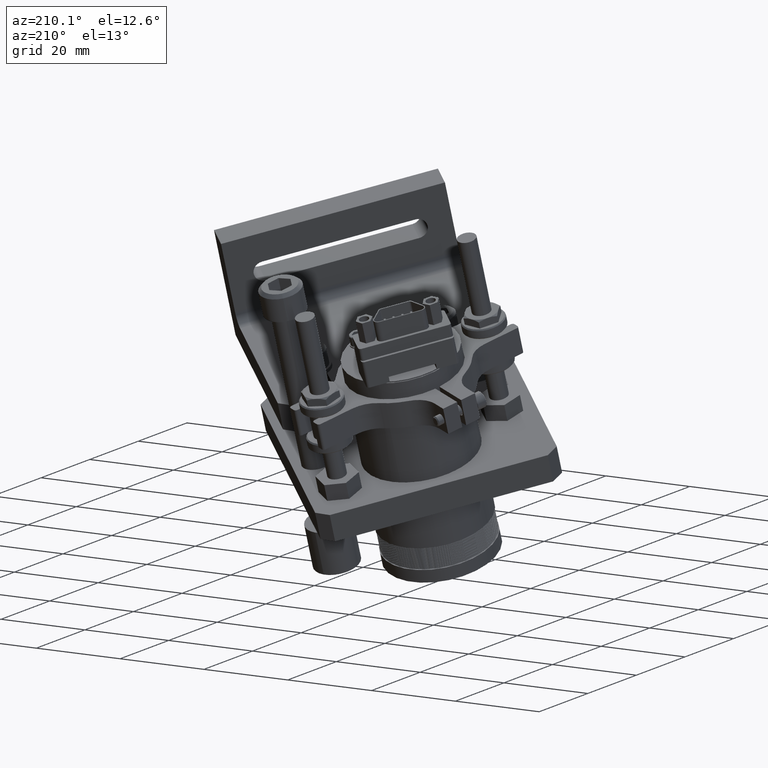
[diagram: clean part render]
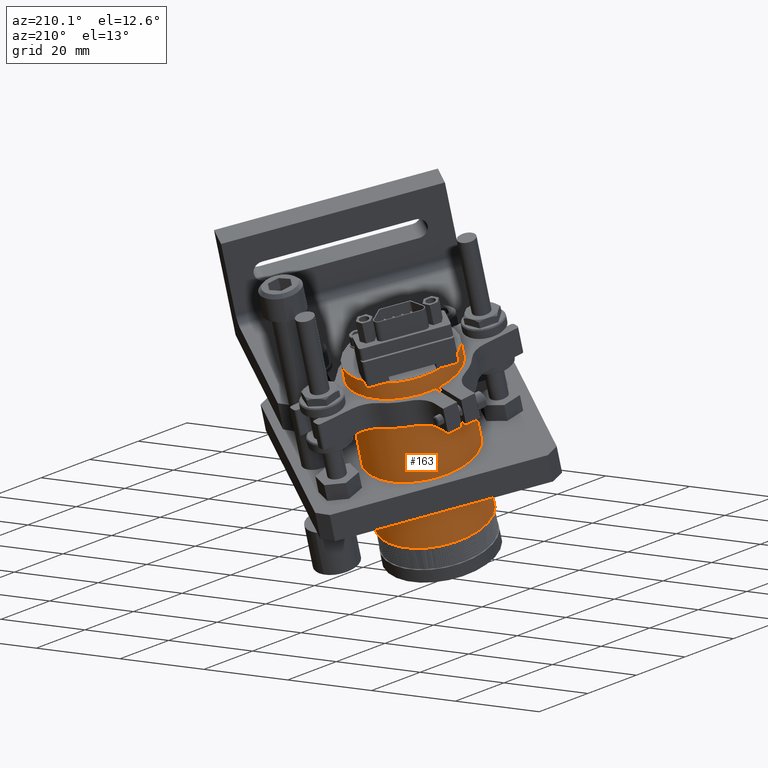
[diagram: same view with one face highlighted and labeled with its STEP entity id]
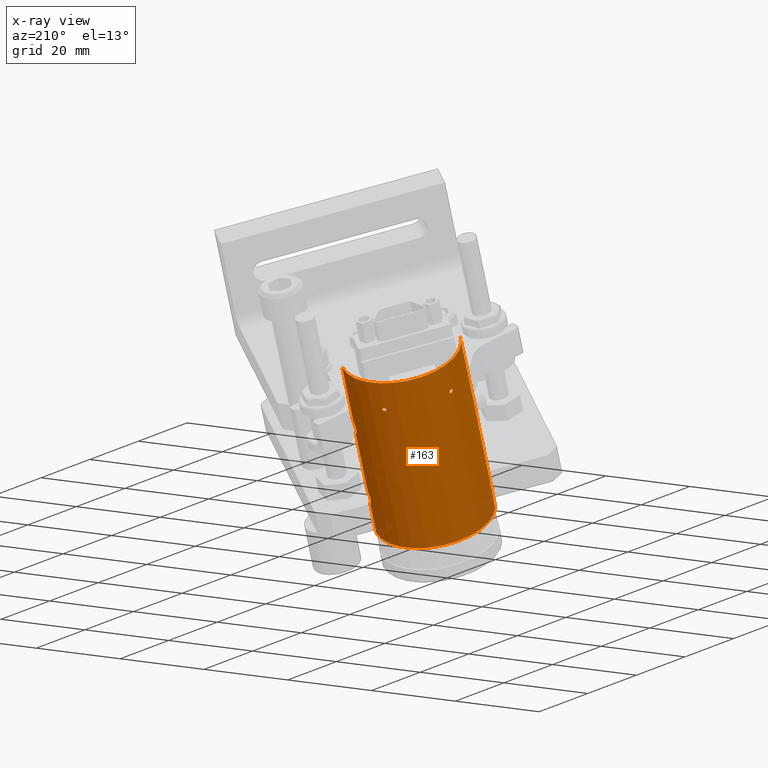
[diagram: x-ray of the same camera — body ghosted, the highlighted face saturated]
A machine part, auxiliary view. The second image highlights one B-rep face of the part: STEP entity #163.
The next image is the same camera in x-ray: the body ghosted, the highlighted face saturated — about 0% of this face is hidden behind the body in this view.
In plain terms, the highlighted cylindrical surface (partial cylindrical patch) has radius 12.6492 mm, axis along (-0.0041, -0.3425, -0.9395).
Its self-contained STEP definition (entity closure, byte-faithful):
#163 = ADVANCED_FACE ( 'NONE', ( #18725, #18726, #18727 ), #18728, .T. ) ;
#495 = EDGE_CURVE ( 'NONE', #3360, #3358, #24590, .T. ) ;
#496 = EDGE_CURVE ( 'NONE', #3358, #3360, #24589, .T. ) ;
#497 = EDGE_CURVE ( 'NONE', #3362, #3365, #24588, .T. ) ;
#498 = EDGE_CURVE ( 'NONE', #3365, #3362, #24587, .T. ) ;
#499 = EDGE_CURVE ( 'NONE', #3368, #3370, #20648, .T. ) ;
#500 = EDGE_CURVE ( 'NONE', #3368, #3364, #20647, .T. ) ;
#501 = EDGE_CURVE ( 'NONE', #3364, #3359, #24586, .T. ) ;
#502 = EDGE_CURVE ( 'NONE', #3359, #3363, #20650, .T. ) ;
#503 = EDGE_CURVE ( 'NONE', #3363, #3367, #24585, .T. ) ;
#504 = EDGE_CURVE ( 'NONE', #3367, #3357, #20652, .T. ) ;
#505 = EDGE_CURVE ( 'NONE', #3357, #3380, #20655, .T. ) ;
#506 = EDGE_CURVE ( 'NONE', #3369, #3380, #20654, .T. ) ;
#507 = EDGE_CURVE ( 'NONE', #3369, #3366, #24584, .T. ) ;
#508 = EDGE_CURVE ( 'NONE', #3382, #3366, #20657, .T. ) ;
#509 = EDGE_CURVE ( 'NONE', #3382, #3381, #24583, .T. ) ;
#510 = EDGE_CURVE ( 'NONE', #3370, #3381, #20659, .T. ) ;
#857 = ORIENTED_EDGE ( 'NONE', *, *, #495, .F. ) ;
#858 = ORIENTED_EDGE ( 'NONE', *, *, #496, .F. ) ;
#859 = ORIENTED_EDGE ( 'NONE', *, *, #497, .F. ) ;
#860 = ORIENTED_EDGE ( 'NONE', *, *, #498, .F. ) ;
#861 = ORIENTED_EDGE ( 'NONE', *, *, #499, .F. ) ;
#862 = ORIENTED_EDGE ( 'NONE', *, *, #500, .T. ) ;
#863 = ORIENTED_EDGE ( 'NONE', *, *, #501, .T. ) ;
#864 = ORIENTED_EDGE ( 'NONE', *, *, #502, .T. ) ;
#865 = ORIENTED_EDGE ( 'NONE', *, *, #503, .T. ) ;
#866 = ORIENTED_EDGE ( 'NONE', *, *, #504, .T. ) ;
#867 = ORIENTED_EDGE ( 'NONE', *, *, #505, .T. ) ;
#868 = ORIENTED_EDGE ( 'NONE', *, *, #506, .F. ) ;
#869 = ORIENTED_EDGE ( 'NONE', *, *, #507, .T. ) ;
#870 = ORIENTED_EDGE ( 'NONE', *, *, #508, .F. ) ;
#871 = ORIENTED_EDGE ( 'NONE', *, *, #509, .T. ) ;
#872 = ORIENTED_EDGE ( 'NONE', *, *, #510, .F. ) ;
#3357 = VERTEX_POINT ( 'NONE', #10486 ) ;
#3358 = VERTEX_POINT ( 'NONE', #10487 ) ;
#3359 = VERTEX_POINT ( 'NONE', #10488 ) ;
#3360 = VERTEX_POINT ( 'NONE', #10489 ) ;
#3362 = VERTEX_POINT ( 'NONE', #10491 ) ;
#3363 = VERTEX_POINT ( 'NONE', #10492 ) ;
#3364 = VERTEX_POINT ( 'NONE', #10493 ) ;
#3365 = VERTEX_POINT ( 'NONE', #10494 ) ;
#3366 = VERTEX_POINT ( 'NONE', #10495 ) ;
#3367 = VERTEX_POINT ( 'NONE', #10496 ) ;
#3368 = VERTEX_POINT ( 'NONE', #10497 ) ;
#3369 = VERTEX_POINT ( 'NONE', #10498 ) ;
#3370 = VERTEX_POINT ( 'NONE', #10499 ) ;
#3380 = VERTEX_POINT ( 'NONE', #10509 ) ;
#3381 = VERTEX_POINT ( 'NONE', #10510 ) ;
#3382 = VERTEX_POINT ( 'NONE', #10511 ) ;
#10486 = CARTESIAN_POINT ( 'NONE',  ( -0.4695154141997984800, -0.09096465124174728200, 0.6854652816767824500 ) ) ;
#10487 = CARTESIAN_POINT ( 'NONE',  ( 0.3109845858002016100, 0.3191545387506253800, -0.6225347183232175000 ) ) ;
#10488 = CARTESIAN_POINT ( 'NONE',  ( -0.4695154141997984800, -0.09096465124174793500, -0.2676180516565510000 ) ) ;
#10489 = CARTESIAN_POINT ( 'NONE',  ( 0.3109845858002016100, 0.3191545387506253800, -0.6525347183232175200 ) ) ;
#10491 = CARTESIAN_POINT ( 'NONE',  ( -0.2540154141997985100, 0.3191545387506253800, -0.6525347183232175200 ) ) ;
#10492 = CARTESIAN_POINT ( 'NONE',  ( -0.4695154141997984800, -0.09096465124174794900, 0.2925486150101159800 ) ) ;
#10493 = CARTESIAN_POINT ( 'NONE',  ( -0.4695154141997984800, -0.09096465124174790700, -0.3741180516565506500 ) ) ;
#10494 = CARTESIAN_POINT ( 'NONE',  ( -0.2540154141997985600, 0.3191545387506254900, -0.6225347183232175000 ) ) ;
#10495 = CARTESIAN_POINT ( 'NONE',  ( 0.5264845858002015200, -0.09096465124174733800, 0.2925486150101159800 ) ) ;
#10496 = CARTESIAN_POINT ( 'NONE',  ( -0.4695154141997984800, -0.09096465124174793500, 0.3990486150101155700 ) ) ;
#10497 = CARTESIAN_POINT ( 'NONE',  ( -0.4695154141997984800, -0.09096465124174728200, -0.8875347183232176200 ) ) ;
#10498 = CARTESIAN_POINT ( 'NONE',  ( 0.5264845858002015200, -0.09096465124174735200, 0.3990486150101155700 ) ) ;
#10499 = CARTESIAN_POINT ( 'NONE',  ( 0.5264845858002015200, -0.09096465124174735200, -0.8875347183232176200 ) ) ;
#10509 = CARTESIAN_POINT ( 'NONE',  ( 0.5264845858002015200, -0.09096465124174735200, 0.6854652816767824500 ) ) ;
#10510 = CARTESIAN_POINT ( 'NONE',  ( 0.5264845858002015200, -0.09096465124174735200, -0.3741180516565506500 ) ) ;
#10511 = CARTESIAN_POINT ( 'NONE',  ( 0.5264845858002015200, -0.09096465124174793500, -0.2676180516565510000 ) ) ;
#13537 = EDGE_LOOP ( 'NONE', ( #861, #862, #863, #864, #865, #866, #867, #868, #869, #870, #871, #872 ) ) ;
#13541 = EDGE_LOOP ( 'NONE', ( #859, #860 ) ) ;
#13545 = EDGE_LOOP ( 'NONE', ( #857, #858 ) ) ;
#17322 = AXIS2_PLACEMENT_3D ( 'NONE', #19163, #19164, #19165 ) ;
#17538 = AXIS2_PLACEMENT_3D ( 'NONE', #21743, #21744, #21745 ) ;
#17539 = AXIS2_PLACEMENT_3D ( 'NONE', #21800, #21801, #21802 ) ;
#18725 = FACE_BOUND ( 'NONE', #13545, .T. ) ;
#18726 = FACE_BOUND ( 'NONE', #13541, .T. ) ;
#18727 = FACE_OUTER_BOUND ( 'NONE', #13537, .T. ) ;
#18728 = CYLINDRICAL_SURFACE ( 'NONE', #17322, 0.4980000000000000000 ) ;
#19163 = CARTESIAN_POINT ( 'NONE',  ( 0.02848458580020153700, -0.09096465124174735200, -0.8875347183232176200 ) ) ;
#19164 = DIRECTION ( 'NONE',  ( -0.0000000000000000000, -0.0000000000000000000, 1.000000000000000000 ) ) ;
#19165 = DIRECTION ( 'NONE',  ( 1.000000000000000000, 0.0000000000000000000, 0.0000000000000000000 ) ) ;
#20647 = LINE ( 'NONE', #21746, #20649 ) ;
#20648 = CIRCLE ( 'NONE', #17538, 0.4980000000000000000 ) ;
#20649 = VECTOR ( 'NONE', #21747, 39.37007874015748100 ) ;
#20650 = LINE ( 'NONE', #21772, #20651 ) ;
#20651 = VECTOR ( 'NONE', #21773, 39.37007874015748100 ) ;
#20652 = LINE ( 'NONE', #21798, #20653 ) ;
#20653 = VECTOR ( 'NONE', #21799, 39.37007874015748100 ) ;
#20654 = LINE ( 'NONE', #21803, #20656 ) ;
#20655 = CIRCLE ( 'NONE', #17539, 0.4980000000000000000 ) ;
#20656 = VECTOR ( 'NONE', #21804, 39.37007874015748100 ) ;
#20657 = LINE ( 'NONE', #21827, #20658 ) ;
#20658 = VECTOR ( 'NONE', #21828, 39.37007874015748100 ) ;
#20659 = LINE ( 'NONE', #21851, #20660 ) ;
#20660 = VECTOR ( 'NONE', #21852, 39.37007874015748100 ) ;
#21687 = CARTESIAN_POINT ( 'NONE',  ( 0.3109845858002016100, 0.3191545387506253800, -0.6525347183232175200 ) ) ;
#21688 = CARTESIAN_POINT ( 'NONE',  ( 0.3073956471025011700, 0.3216266863770733100, -0.6525347183232175200 ) ) ;
#21689 = CARTESIAN_POINT ( 'NONE',  ( 0.3038153316814026800, 0.3240160161316003600, -0.6512775745080050500 ) ) ;
#21690 = CARTESIAN_POINT ( 'NONE',  ( 0.2994703837680011100, 0.3268555143558898900, -0.6473448776871464400 ) ) ;
#21691 = CARTESIAN_POINT ( 'NONE',  ( 0.2982267117378210600, 0.3276572139664892200, -0.6456978679331472100 ) ) ;
#21692 = CARTESIAN_POINT ( 'NONE',  ( 0.2964767684679801000, 0.3287796406369268300, -0.6418848445743224900 ) ) ;
#21693 = CARTESIAN_POINT ( 'NONE',  ( 0.2959906336171290200, 0.3290883387866524500, -0.6397334479995779900 ) ) ;
#21694 = CARTESIAN_POINT ( 'NONE',  ( 0.2959786536501391500, 0.3290959678545019000, -0.6354192953003454700 ) ) ;
#21695 = CARTESIAN_POINT ( 'NONE',  ( 0.2964533800197161100, 0.3287945636400444500, -0.6332572777533201900 ) ) ;
#21696 = CARTESIAN_POINT ( 'NONE',  ( 0.2981974056136417200, 0.3276760873180844000, -0.6294143450472975400 ) ) ;
#21697 = CARTESIAN_POINT ( 'NONE',  ( 0.2994416829132567300, 0.3268740925022053400, -0.6277590974932774100 ) ) ;
#21698 = CARTESIAN_POINT ( 'NONE',  ( 0.3037656069615792300, 0.3240488622565236800, -0.6238200610836133200 ) ) ;
#21699 = CARTESIAN_POINT ( 'NONE',  ( 0.3074314844803083300, 0.3216020007259807200, -0.6225347183232175000 ) ) ;
#21700 = CARTESIAN_POINT ( 'NONE',  ( 0.3109845858002016100, 0.3191545387506253800, -0.6225347183232175000 ) ) ;
#21701 = CARTESIAN_POINT ( 'NONE',  ( 0.3109845858002016100, 0.3191545387506253800, -0.6225347183232175000 ) ) ;
#21702 = CARTESIAN_POINT ( 'NONE',  ( 0.3145752503260515500, 0.3166812023320797500, -0.6225347183232175000 ) ) ;
#21703 = CARTESIAN_POINT ( 'NONE',  ( 0.3181885189463549100, 0.3141131527706019200, -0.6238291775378074200 ) ) ;
#21704 = CARTESIAN_POINT ( 'NONE',  ( 0.3224623876638053100, 0.3110106602605873800, -0.6276886688804941300 ) ) ;
#21705 = CARTESIAN_POINT ( 'NONE',  ( 0.3237086311824586300, 0.3100939019622313600, -0.6293205480253940600 ) ) ;
#21706 = CARTESIAN_POINT ( 'NONE',  ( 0.3254702251068297100, 0.3087911868839352500, -0.6331142909174505300 ) ) ;
#21707 = CARTESIAN_POINT ( 'NONE',  ( 0.3259775563738890900, 0.3084122791566586400, -0.6352822710098308100 ) ) ;
#21708 = CARTESIAN_POINT ( 'NONE',  ( 0.3259914660198181000, 0.3084019175859409900, -0.6396925486217175400 ) ) ;
#21709 = CARTESIAN_POINT ( 'NONE',  ( 0.3254975130664933800, 0.3087708855417724600, -0.6418677651583355500 ) ) ;
#21710 = CARTESIAN_POINT ( 'NONE',  ( 0.3237520615302508200, 0.3100619016283899800, -0.6456828418001048200 ) ) ;
#21711 = CARTESIAN_POINT ( 'NONE',  ( 0.3225099144198944600, 0.3109759499600088800, -0.6473287859925035400 ) ) ;
#21712 = CARTESIAN_POINT ( 'NONE',  ( 0.3182076701790128000, 0.3140996614734290500, -0.6512407351503767300 ) ) ;
#21713 = CARTESIAN_POINT ( 'NONE',  ( 0.3146114665747891700, 0.3166562557055427300, -0.6525347183232175200 ) ) ;
#21714 = CARTESIAN_POINT ( 'NONE',  ( 0.3109845858002016100, 0.3191545387506253800, -0.6525347183232175200 ) ) ;
#21715 = CARTESIAN_POINT ( 'NONE',  ( -0.2540154141997985100, 0.3191545387506253800, -0.6525347183232175200 ) ) ;
#21716 = CARTESIAN_POINT ( 'NONE',  ( -0.2576491294029191200, 0.3166515479861584100, -0.6525347183232175200 ) ) ;
#21717 = CARTESIAN_POINT ( 'NONE',  ( -0.2612010279169965600, 0.3141262454629158400, -0.6512479655826178800 ) ) ;
#21718 = CARTESIAN_POINT ( 'NONE',  ( -0.2654738711574983800, 0.3110248050005519600, -0.6474026113542713500 ) ) ;
#21719 = CARTESIAN_POINT ( 'NONE',  ( -0.2667223476083728200, 0.3101065306867262200, -0.6457798170765469700 ) ) ;
#21720 = CARTESIAN_POINT ( 'NONE',  ( -0.2685032632194224200, 0.3087895783052260800, -0.6419562611406830500 ) ) ;
#21721 = CARTESIAN_POINT ( 'NONE',  ( -0.2690062925411896300, 0.3084138377001159900, -0.6397885477157614400 ) ) ;
#21722 = CARTESIAN_POINT ( 'NONE',  ( -0.2690242833168776700, 0.3084004360186378700, -0.6354039841296880200 ) ) ;
#21723 = CARTESIAN_POINT ( 'NONE',  ( -0.2685353806314875700, 0.3087656688914070500, -0.6332194953283854000 ) ) ;
#21724 = CARTESIAN_POINT ( 'NONE',  ( -0.2667818386782790400, 0.3100626893081576100, -0.6293818672447445400 ) ) ;
#21725 = CARTESIAN_POINT ( 'NONE',  ( -0.2655374183755049900, 0.3109783655839655800, -0.6277375470331236800 ) ) ;
#21726 = CARTESIAN_POINT ( 'NONE',  ( -0.2612441187100514900, 0.3140955771695685400, -0.6238339733378870400 ) ) ;
#21727 = CARTESIAN_POINT ( 'NONE',  ( -0.2576110736718829100, 0.3166777616925153200, -0.6225347183232175000 ) ) ;
#21728 = CARTESIAN_POINT ( 'NONE',  ( -0.2540154141997985600, 0.3191545387506254900, -0.6225347183232175000 ) ) ;
#21729 = CARTESIAN_POINT ( 'NONE',  ( -0.2540154141997985600, 0.3191545387506254900, -0.6225347183232175000 ) ) ;
#21730 = CARTESIAN_POINT ( 'NONE',  ( -0.2504738636724954700, 0.3215940442611619500, -0.6225347183232178300 ) ) ;
#21731 = CARTESIAN_POINT ( 'NONE',  ( -0.2468296755508094800, 0.3240267960926598300, -0.6238064463117841700 ) ) ;
#21732 = CARTESIAN_POINT ( 'NONE',  ( -0.2425083839944094400, 0.3268508239238895300, -0.6277182358095977400 ) ) ;
#21733 = CARTESIAN_POINT ( 'NONE',  ( -0.2412582441491384600, 0.3276567382074024300, -0.6293766093141789400 ) ) ;
#21734 = CARTESIAN_POINT ( 'NONE',  ( -0.2395233862184615300, 0.3287695372011988900, -0.6331436757029549300 ) ) ;
#21735 = CARTESIAN_POINT ( 'NONE',  ( -0.2390248002911029600, 0.3290862129084213800, -0.6353029856639030900 ) ) ;
#21736 = CARTESIAN_POINT ( 'NONE',  ( -0.2390063012047747600, 0.3290979934787050500, -0.6396384443331439900 ) ) ;
#21737 = CARTESIAN_POINT ( 'NONE',  ( -0.2394874679001335900, 0.3287924632679524200, -0.6418165285813519600 ) ) ;
#21738 = CARTESIAN_POINT ( 'NONE',  ( -0.2412181187607190200, 0.3276825843855875600, -0.6456356042141266900 ) ) ;
#21739 = CARTESIAN_POINT ( 'NONE',  ( -0.2424601284815422200, 0.3268821278276254900, -0.6472963762734594800 ) ) ;
#21740 = CARTESIAN_POINT ( 'NONE',  ( -0.2467875743597725300, 0.3240547624539516500, -0.6512466367564313500 ) ) ;
#21741 = CARTESIAN_POINT ( 'NONE',  ( -0.2504363806195632500, 0.3216198634930138000, -0.6525347183232175200 ) ) ;
#21742 = CARTESIAN_POINT ( 'NONE',  ( -0.2540154141997985100, 0.3191545387506253800, -0.6525347183232175200 ) ) ;
#21743 = CARTESIAN_POINT ( 'NONE',  ( 0.02848458580020153700, -0.09096465124174735200, -0.8875347183232176200 ) ) ;
#21744 = DIRECTION ( 'NONE',  ( 0.0000000000000000000, 0.0000000000000000000, -1.000000000000000000 ) ) ;
#21745 = DIRECTION ( 'NONE',  ( -1.000000000000000000, 0.0000000000000000000, 0.0000000000000000000 ) ) ;
#21746 = CARTESIAN_POINT ( 'NONE',  ( -0.4695154141997984800, -0.09096465124174728200, -0.8875347183232176200 ) ) ;
#21747 = DIRECTION ( 'NONE',  ( -0.0000000000000000000, -0.0000000000000000000, 1.000000000000000000 ) ) ;
#21748 = CARTESIAN_POINT ( 'NONE',  ( -0.4695154141997984800, -0.09096465124174790700, -0.3741180516565506500 ) ) ;
#21749 = CARTESIAN_POINT ( 'NONE',  ( -0.4695154141997984800, -0.08392253230050501800, -0.3741180516565506500 ) ) ;
#21750 = CARTESIAN_POINT ( 'NONE',  ( -0.4693617647119127100, -0.07701264858650618000, -0.3727297238100195100 ) ) ;
#21751 = CARTESIAN_POINT ( 'NONE',  ( -0.4689652262293815300, -0.06734058965587015600, -0.3687183227461495200 ) ) ;
#21752 = CARTESIAN_POINT ( 'NONE',  ( -0.4688085671496736200, -0.06428278789349727000, -0.3670821998264403600 ) ) ;
#21753 = CARTESIAN_POINT ( 'NONE',  ( -0.4684642833876995800, -0.05849584751526577100, -0.3632171497269277000 ) ) ;
#21754 = CARTESIAN_POINT ( 'NONE',  ( -0.4682754604026218000, -0.05575792177752066100, -0.3609691584054858200 ) ) ;
#21755 = CARTESIAN_POINT ( 'NONE',  ( -0.4677170910540239300, -0.04839558854301778700, -0.3536039287515475000 ) ) ;
#21756 = CARTESIAN_POINT ( 'NONE',  ( -0.4673435866255102900, -0.04442921320185484700, -0.3476658943883733100 ) ) ;
#21757 = CARTESIAN_POINT ( 'NONE',  ( -0.4668163101506916400, -0.03911731731965865200, -0.3348510890167091800 ) ) ;
#21758 = CARTESIAN_POINT ( 'NONE',  ( -0.4666605520815418400, -0.03771718709033176900, -0.3278392820761262300 ) ) ;
#21759 = CARTESIAN_POINT ( 'NONE',  ( -0.4666601435774472800, -0.03771338861674817400, -0.3174115321827044600 ) ) ;
#21760 = CARTESIAN_POINT ( 'NONE',  ( -0.4666978042056524300, -0.03806031495094455700, -0.3138805829209845900 ) ) ;
#21761 = CARTESIAN_POINT ( 'NONE',  ( -0.4668413107484719600, -0.03942122897922398900, -0.3070488932462828200 ) ) ;
#21762 = CARTESIAN_POINT ( 'NONE',  ( -0.4669463671531475800, -0.04042782880299444100, -0.3037281653954694800 ) ) ;
#21763 = CARTESIAN_POINT ( 'NONE',  ( -0.4673439776030932600, -0.04443257650503011600, -0.2940527013196255200 ) ) ;
#21764 = CARTESIAN_POINT ( 'NONE',  ( -0.4677125317979888300, -0.04833520074213175400, -0.2881920446410989300 ) ) ;
#21765 = CARTESIAN_POINT ( 'NONE',  ( -0.4684664537565173000, -0.05827652119201658100, -0.2782478963515200900 ) ) ;
#21766 = CARTESIAN_POINT ( 'NONE',  ( -0.4688340067617317600, -0.06413407343895177700, -0.2743447862610635700 ) ) ;
#21767 = CARTESIAN_POINT ( 'NONE',  ( -0.4692302546162633900, -0.07380792566643876200, -0.2703369505938763000 ) ) ;
#21768 = CARTESIAN_POINT ( 'NONE',  ( -0.4693348621068544300, -0.07712771961114584000, -0.2693294785393198800 ) ) ;
#21769 = CARTESIAN_POINT ( 'NONE',  ( -0.4694778124993985200, -0.08395656511596461000, -0.2679665211988814200 ) ) ;
#21770 = CARTESIAN_POINT ( 'NONE',  ( -0.4695154141997983100, -0.08748804839738269500, -0.2676180516565509500 ) ) ;
#21771 = CARTESIAN_POINT ( 'NONE',  ( -0.4695154141997984800, -0.09096465124174793500, -0.2676180516565510000 ) ) ;
#21772 = CARTESIAN_POINT ( 'NONE',  ( -0.4695154141997984800, -0.09096465124174728200, -0.8875347183232176200 ) ) ;
#21773 = DIRECTION ( 'NONE',  ( -0.0000000000000000000, -0.0000000000000000000, 1.000000000000000000 ) ) ;
#21774 = CARTESIAN_POINT ( 'NONE',  ( -0.4695154141997984800, -0.09096465124174794900, 0.2925486150101159800 ) ) ;
#21775 = CARTESIAN_POINT ( 'NONE',  ( -0.4695154141997985300, -0.08392253230050503200, 0.2925486150101159800 ) ) ;
#21776 = CARTESIAN_POINT ( 'NONE',  ( -0.4693617647119127100, -0.07701264858650616600, 0.2939369428566471200 ) ) ;
#21777 = CARTESIAN_POINT ( 'NONE',  ( -0.4689652262293813000, -0.06734058965587010100, 0.2979483439205170000 ) ) ;
#21778 = CARTESIAN_POINT ( 'NONE',  ( -0.4688085671496735600, -0.06428278789349725600, 0.2995844668402263300 ) ) ;
#21779 = CARTESIAN_POINT ( 'NONE',  ( -0.4684642833876995800, -0.05849584751526577800, 0.3034495169397388700 ) ) ;
#21780 = CARTESIAN_POINT ( 'NONE',  ( -0.4682754604026218000, -0.05575792177752066100, 0.3056975082611808100 ) ) ;
#21781 = CARTESIAN_POINT ( 'NONE',  ( -0.4677170910540238700, -0.04839558854301778700, 0.3130627379151192400 ) ) ;
#21782 = CARTESIAN_POINT ( 'NONE',  ( -0.4673435866255102900, -0.04442921320185484700, 0.3190007722782933800 ) ) ;
#21783 = CARTESIAN_POINT ( 'NONE',  ( -0.4668163101506914700, -0.03911731731965865200, 0.3318155776499575000 ) ) ;
#21784 = CARTESIAN_POINT ( 'NONE',  ( -0.4666605520815417800, -0.03771718709033176200, 0.3388273845905404600 ) ) ;
#21785 = CARTESIAN_POINT ( 'NONE',  ( -0.4666601435774471200, -0.03771338861674816700, 0.3492551344839621200 ) ) ;
#21786 = CARTESIAN_POINT ( 'NONE',  ( -0.4666978042056523200, -0.03806031495094455000, 0.3527860837456818200 ) ) ;
#21787 = CARTESIAN_POINT ( 'NONE',  ( -0.4668413107484720700, -0.03942122897922401000, 0.3596177734203840300 ) ) ;
#21788 = CARTESIAN_POINT ( 'NONE',  ( -0.4669463671531476900, -0.04042782880299445500, 0.3629385012711972000 ) ) ;
#21789 = CARTESIAN_POINT ( 'NONE',  ( -0.4673439776030933200, -0.04443257650503011600, 0.3726139653470413300 ) ) ;
#21790 = CARTESIAN_POINT ( 'NONE',  ( -0.4677125317979888800, -0.04833520074213177400, 0.3784746220255677500 ) ) ;
#21791 = CARTESIAN_POINT ( 'NONE',  ( -0.4684664537565174100, -0.05827652119201654600, 0.3884187703151464300 ) ) ;
#21792 = CARTESIAN_POINT ( 'NONE',  ( -0.4688340067617319300, -0.06413407343895172200, 0.3923218804056030600 ) ) ;
#21793 = CARTESIAN_POINT ( 'NONE',  ( -0.4692302546162633900, -0.07380792566643873400, 0.3963297160727902700 ) ) ;
#21794 = CARTESIAN_POINT ( 'NONE',  ( -0.4693348621068544300, -0.07712771961114584000, 0.3973371881273468100 ) ) ;
#21795 = CARTESIAN_POINT ( 'NONE',  ( -0.4694778124993984600, -0.08395656511596461000, 0.3987001454677850900 ) ) ;
#21796 = CARTESIAN_POINT ( 'NONE',  ( -0.4695154141997982500, -0.08748804839738268100, 0.3990486150101155100 ) ) ;
#21797 = CARTESIAN_POINT ( 'NONE',  ( -0.4695154141997984800, -0.09096465124174793500, 0.3990486150101155700 ) ) ;
#21798 = CARTESIAN_POINT ( 'NONE',  ( -0.4695154141997984800, -0.09096465124174728200, -0.8875347183232176200 ) ) ;
#21799 = DIRECTION ( 'NONE',  ( -0.0000000000000000000, -0.0000000000000000000, 1.000000000000000000 ) ) ;
#21800 = CARTESIAN_POINT ( 'NONE',  ( 0.02848458580020153700, -0.09096465124174735200, 0.6854652816767824500 ) ) ;
#21801 = DIRECTION ( 'NONE',  ( 0.0000000000000000000, 0.0000000000000000000, -1.000000000000000000 ) ) ;
#21802 = DIRECTION ( 'NONE',  ( -1.000000000000000000, 0.0000000000000000000, 0.0000000000000000000 ) ) ;
#21803 = CARTESIAN_POINT ( 'NONE',  ( 0.5264845858002015200, -0.09096465124174735200, -0.8875347183232176200 ) ) ;
#21804 = DIRECTION ( 'NONE',  ( -0.0000000000000000000, -0.0000000000000000000, 1.000000000000000000 ) ) ;
#21805 = CARTESIAN_POINT ( 'NONE',  ( 0.5264845858002015200, -0.09096465124174735200, 0.3990486150101155700 ) ) ;
#21806 = CARTESIAN_POINT ( 'NONE',  ( 0.5264845858002016300, -0.08401308505449139900, 0.3990486150101155100 ) ) ;
#21807 = CARTESIAN_POINT ( 'NONE',  ( 0.5263301722921424100, -0.07700361767814357900, 0.3976518827287614500 ) ) ;
#21808 = CARTESIAN_POINT ( 'NONE',  ( 0.5258054772827669400, -0.06418650077061431600, 0.3923453924346695900 ) ) ;
#21809 = CARTESIAN_POINT ( 'NONE',  ( 0.5254332074684500100, -0.05824872349399243300, 0.3883828469410942100 ) ) ;
#21810 = CARTESIAN_POINT ( 'NONE',  ( 0.5248749225747215700, -0.05088099268279456400, 0.3810251586372751000 ) ) ;
#21811 = CARTESIAN_POINT ( 'NONE',  ( 0.5246858723721665700, -0.04863203327256562800, 0.3782887518517242800 ) ) ;
#21812 = CARTESIAN_POINT ( 'NONE',  ( 0.5243408181586718400, -0.04476547190855160300, 0.3725062050371165100 ) ) ;
#21813 = CARTESIAN_POINT ( 'NONE',  ( 0.5241835783201715900, -0.04312828289315737800, 0.3694505960749469000 ) ) ;
#21814 = CARTESIAN_POINT ( 'NONE',  ( 0.5237851103802345600, -0.03911267308155091200, 0.3597851171163297700 ) ) ;
#21815 = CARTESIAN_POINT ( 'NONE',  ( 0.5236300228722566800, -0.03771996911134251100, 0.3528761703604295600 ) ) ;
#21816 = CARTESIAN_POINT ( 'NONE',  ( 0.5236288823111091600, -0.03770936360603148500, 0.3388013081180481500 ) ) ;
#21817 = CARTESIAN_POINT ( 'NONE',  ( 0.5237828559997942400, -0.03909155985363516700, 0.3318890642130515300 ) ) ;
#21818 = CARTESIAN_POINT ( 'NONE',  ( 0.5241803678515039000, -0.04309513928721896100, 0.3222135561037000600 ) ) ;
#21819 = CARTESIAN_POINT ( 'NONE',  ( 0.5243373612955234400, -0.04472854830615675300, 0.3191549776729764600 ) ) ;
#21820 = CARTESIAN_POINT ( 'NONE',  ( 0.5246820382484180800, -0.04858729449330594100, 0.3133668364551420200 ) ) ;
#21821 = CARTESIAN_POINT ( 'NONE',  ( 0.5248709894954826100, -0.05083252090015058500, 0.3106273000023522200 ) ) ;
#21822 = CARTESIAN_POINT ( 'NONE',  ( 0.5254292840192578100, -0.05819018634712580500, 0.3032594084896314000 ) ) ;
#21823 = CARTESIAN_POINT ( 'NONE',  ( 0.5258019744314143000, -0.06412276280861831100, 0.2992888040932493200 ) ) ;
#21824 = CARTESIAN_POINT ( 'NONE',  ( 0.5263280202458580100, -0.07692945302516569800, 0.2939655879211978700 ) ) ;
#21825 = CARTESIAN_POINT ( 'NONE',  ( 0.5264845858002015200, -0.08392419276690017700, 0.2925486150101160300 ) ) ;
#21826 = CARTESIAN_POINT ( 'NONE',  ( 0.5264845858002015200, -0.09096465124174733800, 0.2925486150101159800 ) ) ;
#21827 = CARTESIAN_POINT ( 'NONE',  ( 0.5264845858002015200, -0.09096465124174735200, -0.8875347183232176200 ) ) ;
#21828 = DIRECTION ( 'NONE',  ( -0.0000000000000000000, -0.0000000000000000000, 1.000000000000000000 ) ) ;
#21829 = CARTESIAN_POINT ( 'NONE',  ( 0.5264845858002015200, -0.09096465124174793500, -0.2676180516565510000 ) ) ;
#21830 = CARTESIAN_POINT ( 'NONE',  ( 0.5264845858002016300, -0.08401308505449199500, -0.2676180516565511100 ) ) ;
#21831 = CARTESIAN_POINT ( 'NONE',  ( 0.5263301722921424100, -0.07700361767814413400, -0.2690147839379051200 ) ) ;
#21832 = CARTESIAN_POINT ( 'NONE',  ( 0.5258054772827670500, -0.06418650077061478800, -0.2743212742319966500 ) ) ;
#21833 = CARTESIAN_POINT ( 'NONE',  ( 0.5254332074684500100, -0.05824872349399279300, -0.2782838197255720300 ) ) ;
#21834 = CARTESIAN_POINT ( 'NONE',  ( 0.5248749225747214600, -0.05088099268279482100, -0.2856415080293912000 ) ) ;
#21835 = CARTESIAN_POINT ( 'NONE',  ( 0.5246858723721664600, -0.04863203327256585700, -0.2883779148149420200 ) ) ;
#21836 = CARTESIAN_POINT ( 'NONE',  ( 0.5243408181586718400, -0.04476547190855181800, -0.2941604616295497900 ) ) ;
#21837 = CARTESIAN_POINT ( 'NONE',  ( 0.5241835783201718200, -0.04312828289315753800, -0.2972160705917195100 ) ) ;
#21838 = CARTESIAN_POINT ( 'NONE',  ( 0.5237851103802346800, -0.03911267308155101000, -0.3068815495503364200 ) ) ;
#21839 = CARTESIAN_POINT ( 'NONE',  ( 0.5236300228722568000, -0.03771996911134255200, -0.3137904963062368400 ) ) ;
#21840 = CARTESIAN_POINT ( 'NONE',  ( 0.5236288823111091600, -0.03770936360603145000, -0.3278653585486182600 ) ) ;
#21841 = CARTESIAN_POINT ( 'NONE',  ( 0.5237828559997942400, -0.03909155985363509100, -0.3347776024536149300 ) ) ;
#21842 = CARTESIAN_POINT ( 'NONE',  ( 0.5241803678515041300, -0.04309513928721884400, -0.3444531105629665700 ) ) ;
#21843 = CARTESIAN_POINT ( 'NONE',  ( 0.5243373612955235500, -0.04472854830615666900, -0.3475116889936900600 ) ) ;
#21844 = CARTESIAN_POINT ( 'NONE',  ( 0.5246820382484181900, -0.04858729449330583000, -0.3532998302115246100 ) ) ;
#21845 = CARTESIAN_POINT ( 'NONE',  ( 0.5248709894954827200, -0.05083252090015049500, -0.3560393666643144100 ) ) ;
#21846 = CARTESIAN_POINT ( 'NONE',  ( 0.5254292840192577000, -0.05819018634712570800, -0.3634072581770351800 ) ) ;
#21847 = CARTESIAN_POINT ( 'NONE',  ( 0.5258019744314144100, -0.06412276280861817200, -0.3673778625734172000 ) ) ;
#21848 = CARTESIAN_POINT ( 'NONE',  ( 0.5263280202458579000, -0.07692945302516557300, -0.3727010787454687600 ) ) ;
#21849 = CARTESIAN_POINT ( 'NONE',  ( 0.5264845858002016300, -0.08392419276690014900, -0.3741180516565508200 ) ) ;
#21850 = CARTESIAN_POINT ( 'NONE',  ( 0.5264845858002015200, -0.09096465124174735200, -0.3741180516565506500 ) ) ;
#21851 = CARTESIAN_POINT ( 'NONE',  ( 0.5264845858002015200, -0.09096465124174735200, -0.8875347183232176200 ) ) ;
#21852 = DIRECTION ( 'NONE',  ( -0.0000000000000000000, -0.0000000000000000000, 1.000000000000000000 ) ) ;
#24583 = B_SPLINE_CURVE_WITH_KNOTS ( 'NONE', 3,
 ( #21829, #21830, #21831, #21832, #21833, #21834, #21835, #21836, #21837, #21838, #21839, #21840, #21841, #21842, #21843, #21844, #21845, #21846, #21847, #21848, #21849, #21850 ),
 .UNSPECIFIED., .F., .F.,
 ( 4, 2, 2, 2, 2, 2, 2, 2, 2, 2, 4 ),
 ( 0.004231711121883448600, 0.004760550287334817100, 0.005289389452786185500, 0.005553809035511870200, 0.005818228618237554800, 0.006347067783688924200, 0.006875906949140298700, 0.007140326531865985100, 0.007404746114591672300, 0.007933585280043047700, 0.008462424445494420500 ),
 .UNSPECIFIED. ) ;
#24584 = B_SPLINE_CURVE_WITH_KNOTS ( 'NONE', 3,
 ( #21805, #21806, #21807, #21808, #21809, #21810, #21811, #21812, #21813, #21814, #21815, #21816, #21817, #21818, #21819, #21820, #21821, #21822, #21823, #21824, #21825, #21826 ),
 .UNSPECIFIED., .F., .F.,
 ( 4, 2, 2, 2, 2, 2, 2, 2, 2, 2, 4 ),
 ( 0.004231711121883462500, 0.004760550287334836200, 0.005289389452786209800, 0.005553809035511897100, 0.005818228618237583500, 0.006347067783688951900, 0.006875906949140321200, 0.007140326531866002400, 0.007404746114591683600, 0.007933585280043047700, 0.008462424445494411800 ),
 .UNSPECIFIED. ) ;
#24585 = B_SPLINE_CURVE_WITH_KNOTS ( 'NONE', 3,
 ( #21774, #21775, #21776, #21777, #21778, #21779, #21780, #21781, #21782, #21783, #21784, #21785, #21786, #21787, #21788, #21789, #21790, #21791, #21792, #21793, #21794, #21795, #21796, #21797 ),
 .UNSPECIFIED., .F., .F.,
 ( 4, 2, 2, 2, 2, 2, 2, 2, 2, 2, 2, 4 ),
 ( 4.336808689942017300E-019, 0.0005289638902354278300, 0.0007934458353531413000, 0.001057927780470854800, 0.001586891670706281100, 0.002115855560941707000, 0.002380337506059422400, 0.002644819451177138300, 0.003173783341412569100, 0.003702747231648000400, 0.003967229176765715800, 0.004231711121883431300 ),
 .UNSPECIFIED. ) ;
#24586 = B_SPLINE_CURVE_WITH_KNOTS ( 'NONE', 3,
 ( #21748, #21749, #21750, #21751, #21752, #21753, #21754, #21755, #21756, #21757, #21758, #21759, #21760, #21761, #21762, #21763, #21764, #21765, #21766, #21767, #21768, #21769, #21770, #21771 ),
 .UNSPECIFIED., .F., .F.,
 ( 4, 2, 2, 2, 2, 2, 2, 2, 2, 2, 2, 4 ),
 ( 4.336808689942017300E-019, 0.0005289638902354283700, 0.0007934458353531414100, 0.001057927780470854600, 0.001586891670706283500, 0.002115855560941712200, 0.002380337506059424600, 0.002644819451177138700, 0.003173783341412569600, 0.003702747231648000400, 0.003967229176765715800, 0.004231711121883431300 ),
 .UNSPECIFIED. ) ;
#24587 = B_SPLINE_CURVE_WITH_KNOTS ( 'NONE', 3,
 ( #21729, #21730, #21731, #21732, #21733, #21734, #21735, #21736, #21737, #21738, #21739, #21740, #21741, #21742 ),
 .UNSPECIFIED., .F., .F.,
 ( 4, 2, 2, 2, 2, 2, 4 ),
 ( 0.001324604219790457600, 0.001650771979104678500, 0.001813855858761789200, 0.001976939738418899400, 0.002140023618076010100, 0.002303107497733120800, 0.002629275257047340800 ),
 .UNSPECIFIED. ) ;
#24588 = B_SPLINE_CURVE_WITH_KNOTS ( 'NONE', 3,
 ( #21715, #21716, #21717, #21718, #21719, #21720, #21721, #21722, #21723, #21724, #21725, #21726, #21727, #21728 ),
 .UNSPECIFIED., .F., .F.,
 ( 4, 2, 2, 2, 2, 2, 4 ),
 ( 0.0000000000000000000, 0.0003311510549476136400, 0.0004967265824214213800, 0.0006623021098952291200, 0.0008278776373690367600, 0.0009934531648428445000, 0.001324604219790457600 ),
 .UNSPECIFIED. ) ;
#24589 = B_SPLINE_CURVE_WITH_KNOTS ( 'NONE', 3,
 ( #21701, #21702, #21703, #21704, #21705, #21706, #21707, #21708, #21709, #21710, #21711, #21712, #21713, #21714 ),
 .UNSPECIFIED., .F., .F.,
 ( 4, 2, 2, 2, 2, 2, 4 ),
 ( 0.001307413341697593100, 0.001637722153915571600, 0.001802876560024559000, 0.001968030966133546400, 0.002133185372242533800, 0.002298339778351521200, 0.002628648590569489900 ),
 .UNSPECIFIED. ) ;
#24590 = B_SPLINE_CURVE_WITH_KNOTS ( 'NONE', 3,
 ( #21687, #21688, #21689, #21690, #21691, #21692, #21693, #21694, #21695, #21696, #21697, #21698, #21699, #21700 ),
 .UNSPECIFIED., .F., .F.,
 ( 4, 2, 2, 2, 2, 2, 4 ),
 ( 0.0000000000000000000, 0.0003268533354243975600, 0.0004902800031365974800, 0.0006537066708487974000, 0.0008171333385609972100, 0.0009805600062731973500, 0.001307413341697593100 ),
 .UNSPECIFIED. ) ;